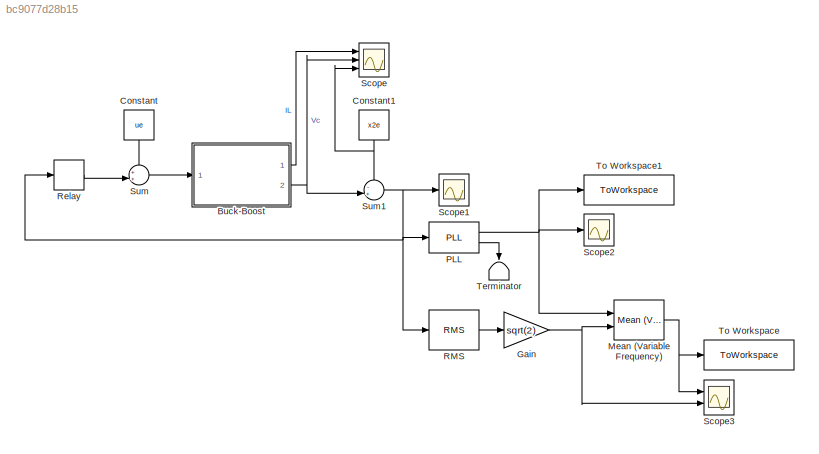
MODEL slx_bc9077d28b15
KIND model
CONFIG AbsTol = auto
CONFIG EnableMultiTasking = off
CONFIG FixedStep = 1e-3
CONFIG MaxStep = auto
CONFIG MinStep = auto
CONFIG RelTol = 1e-3
CONFIG SampleTimeConstraint = Unconstrained
CONFIG Solver = FixedStepAuto
CONFIG SolverName = FixedStepAuto
CONFIG StartTime = 0.0
CONFIG StopTime = sim_duration
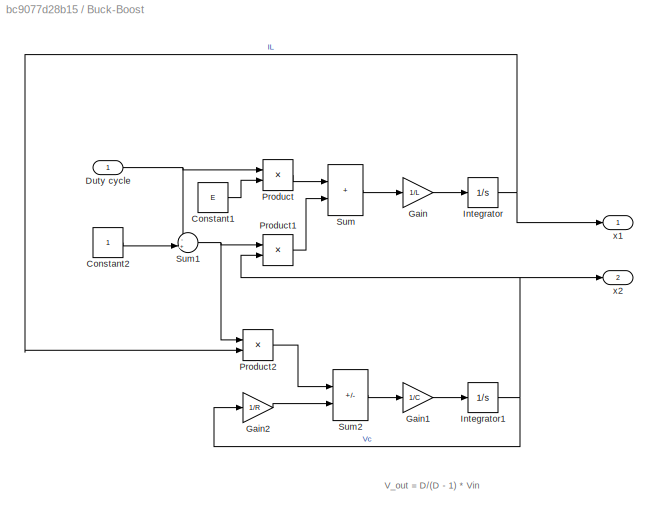
BLOCK [SubSystem] Buck-Boost
  Ports = [1, 2]
  RequestExecContextInheritance = off
BLOCK [Constant] Buck-Boost/Constant1
  Value = E
BLOCK [Constant] Buck-Boost/Constant2
BLOCK [Inport] Buck-Boost/Duty cycle
BLOCK [Gain] Buck-Boost/Gain
  Gain = 1/L
BLOCK [Gain] Buck-Boost/Gain1
  Gain = 1/C
BLOCK [Gain] Buck-Boost/Gain2
  Gain = 1/R
BLOCK [Integrator] Buck-Boost/Integrator
  Ports = [1, 1]
BLOCK [Integrator] Buck-Boost/Integrator1
  Ports = [1, 1]
BLOCK [Product] Buck-Boost/Product
  Ports = [2, 1]
BLOCK [Product] Buck-Boost/Product1
  Ports = [2, 1]
BLOCK [Product] Buck-Boost/Product2
  Ports = [2, 1]
BLOCK [Sum] Buck-Boost/Sum
  IconShape = rectangular
  Ports = [2, 1]
BLOCK [Sum] Buck-Boost/Sum1
  Inputs = -+|
  Ports = [2, 1]
BLOCK [Sum] Buck-Boost/Sum2
  IconShape = rectangular
  Inputs = --
  Ports = [2, 1]
BLOCK [Outport] Buck-Boost/x1
BLOCK [Outport] Buck-Boost/x2
  Port = 2
BLOCK [Constant] Constant
  NameLocation = left
  Value = ue
BLOCK [Constant] Constant1
  NameLocation = left
  Value = x2e
BLOCK [Gain] Gain
  Gain = sqrt(2)
BLOCK [Reference] Mean (Variable Frequency)  REF=powerlib_meascontrol/Measurements/Mean
(Variable Frequency)
  Ports = [2, 1]
  SourceBlock = powerlib_meascontrol/Measurements/Mean\n(Variable Frequency)
  SourceProductBaseCode = PS
  SourceType = Mean (Variable Frequency)
BLOCK [Reference] PLL  REF=powerlib_meascontrol/PLL/PLL
  Ports = [1, 2]
  SourceBlock = powerlib_meascontrol/PLL/PLL
  SourceProductBaseCode = PS
  SourceType = PLL
BLOCK [Reference] RMS  REF=powerlib_meascontrol/Measurements/RMS
  Ports = [1, 1]
  SourceBlock = powerlib_meascontrol/Measurements/RMS
  SourceProductBaseCode = PS
  SourceType = RMS
BLOCK [Relay] Relay
  OffOutputValue = -M
  OffSwitchValue = -eps
  OnOutputValue = M
BLOCK [Scope] Scope
  Floating = off
  NumInputPorts = 3
  Ports = [3]
  ScopeSpecificationString = Simulink.scopes.TimeScopeBlockCfg('CurrentConfiguration', extmgr.ConfigurationSet(extmgr.Configuration('Core','General UI',true),extmgr.Configuration('Core','Source UI',true),extmgr.Configuration('Sources','WiredSimulink',true),extmgr.Configuration('Visuals','Time Domain',true,'SerializedDisplays',{struct('MinYLimReal','-37.27096','MaxYLimReal','-12.03036','YLabelReal','','MinYLimMag','0.00000','M...<+1391ch>
BLOCK [Scope] Scope1
  Floating = off
  NumInputPorts = 1
  Ports = [1]
  ScopeSpecificationString = Simulink.scopes.TimeScopeBlockCfg('CurrentConfiguration', extmgr.ConfigurationSet(extmgr.Configuration('Core','General UI',true),extmgr.Configuration('Core','Source UI',true),extmgr.Configuration('Sources','WiredSimulink',true,'DataLoggingVariableName','ScopeData1'),extmgr.Configuration('Visuals','Time Domain',true,'SerializedDisplays',{struct('MinYLimReal','-23.60044','MaxYLimReal','27.62227','YL...<+1740ch>
BLOCK [Scope] Scope2
  Floating = off
  NumInputPorts = 1
  Ports = [1]
  ScopeSpecificationString = Simulink.scopes.TimeScopeBlockCfg('CurrentConfiguration', extmgr.ConfigurationSet(extmgr.Configuration('Core','General UI',true),extmgr.Configuration('Core','Source UI',true),extmgr.Configuration('Sources','WiredSimulink',true,'DataLoggingVariableName','ScopeData2'),extmgr.Configuration('Visuals','Time Domain',true,'SerializedDisplays',{struct('MinYLimReal','-2.40977','MaxYLimReal','31.14878','YLa...<+1412ch>
BLOCK [Scope] Scope3
  Floating = off
  NumInputPorts = 2
  Ports = [2]
  ScopeSpecificationString = Simulink.scopes.TimeScopeBlockCfg('CurrentConfiguration', extmgr.ConfigurationSet(extmgr.Configuration('Core','General UI',true),extmgr.Configuration('Core','Source UI',true),extmgr.Configuration('Sources','WiredSimulink',true,'DataLoggingVariableName','ScopeData3'),extmgr.Configuration('Visuals','Time Domain',true,'SerializedDisplays',{struct('MinYLimReal','-1.14438','MaxYLimReal','10.29944','YLa...<+1439ch>
BLOCK [Sum] Sum
  Inputs = ++|
  Ports = [2, 1]
BLOCK [Sum] Sum1
  Inputs = -+|
  Ports = [2, 1]
BLOCK [Terminator] Terminator
  NameLocation = left
BLOCK [ToWorkspace] To Workspace
  FixptAsFi = on
  MaxDataPoints = inf
  Ports = [1]
  SampleTime = -1
  SaveFormat = Timeseries
  VariableName = amplitude
BLOCK [ToWorkspace] To Workspace1
  FixptAsFi = on
  MaxDataPoints = inf
  Ports = [1]
  SampleTime = -1
  SaveFormat = Timeseries
  VariableName = frequency
ANNOTATION Buck-Boost: V_out = D/(D - 1) * Vin
LINE Buck-Boost/Constant1:1 -> Buck-Boost/Product:2
LINE Buck-Boost/Constant2:1 -> Buck-Boost/Sum1:2
NET Buck-Boost/Duty cycle:1 -> Buck-Boost/Product:1, Buck-Boost/Sum1:1
LINE Buck-Boost/Gain1:1 -> Buck-Boost/Integrator1:1
LINE Buck-Boost/Gain2:1 -> Buck-Boost/Sum2:2
LINE Buck-Boost/Gain:1 -> Buck-Boost/Integrator:1
NET Buck-Boost/Integrator1:1 -> Buck-Boost/Gain2:1, Buck-Boost/Product1:2, Buck-Boost/x2:1
NET Buck-Boost/Integrator:1 -> Buck-Boost/Product2:2, Buck-Boost/x1:1
LINE Buck-Boost/Product1:1 -> Buck-Boost/Sum:2
LINE Buck-Boost/Product2:1 -> Buck-Boost/Sum2:1
LINE Buck-Boost/Product:1 -> Buck-Boost/Sum:1
NET Buck-Boost/Sum1:1 -> Buck-Boost/Product1:1, Buck-Boost/Product2:1
LINE Buck-Boost/Sum2:1 -> Buck-Boost/Gain1:1
LINE Buck-Boost/Sum:1 -> Buck-Boost/Gain:1
LINE Buck-Boost:1 -> Scope:1
NET Buck-Boost:2 -> Scope:2, Sum1:2
NET Constant1:1 -> Scope:3, Sum1:1
LINE Constant:1 -> Sum:1
NET Gain:1 -> Mean (Variable Frequency):2, Scope3:2
NET Mean (Variable Frequency):1 -> Scope3:1, To Workspace:1
NET PLL:1 -> Mean (Variable Frequency):1, Scope2:1, To Workspace1:1
LINE PLL:2 -> Terminator:1
LINE RMS:1 -> Gain:1
LINE Relay:1 -> Sum:2
NET Sum1:1 -> PLL:1, RMS:1, Relay:1, Scope1:1
LINE Sum:1 -> Buck-Boost:1
note: NET lines group one-source signal fan-out (src -> all destinations, sorted); 1:1 wires keep LINE
